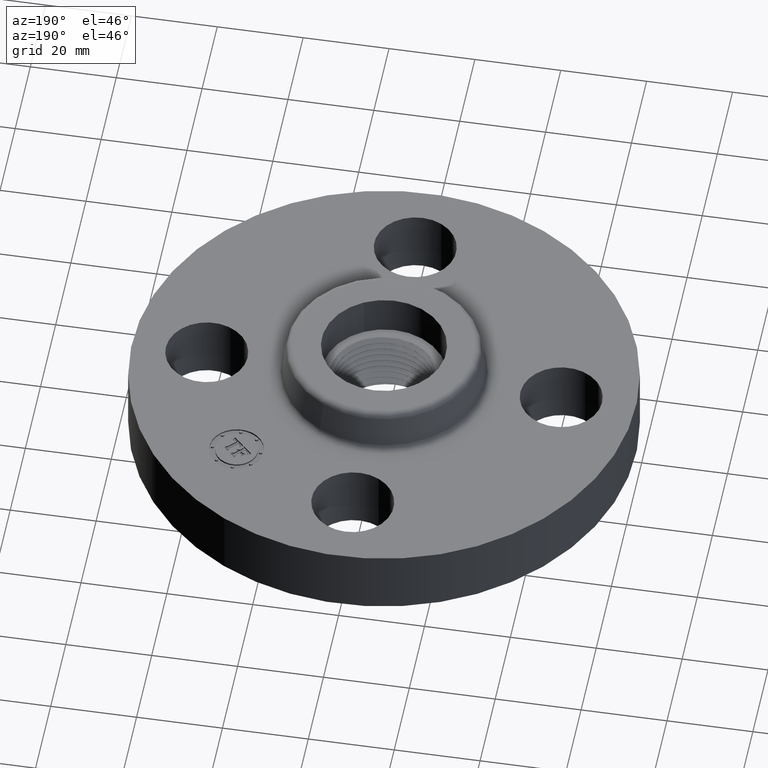
[diagram: clean part render]
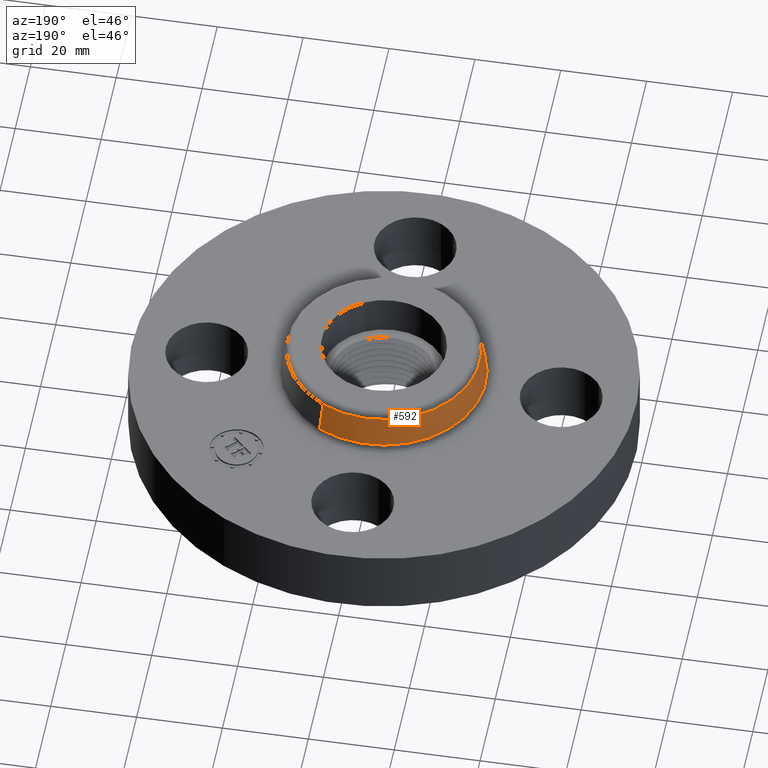
[diagram: same view with one face highlighted and labeled with its STEP entity id]
A machine part, auxiliary view. The second image highlights one B-rep face of the part: STEP entity #592.
In plain terms, the highlighted conical surface has half-angle 10 deg.
Its self-contained STEP definition (entity closure, byte-faithful):
#540=AXIS2_PLACEMENT_3D('Circle Axis2P3D',#538,#539,$) ;
#553=AXIS2_PLACEMENT_3D('Cone Axis2P3D',#550,#551,#552) ;
#583=AXIS2_PLACEMENT_3D('Circle Axis2P3D',#581,#582,$) ;
#511=CARTESIAN_POINT('Vertex',(0.446468634602,0.817255353769,0.669581109343)) ;
#518=CARTESIAN_POINT('Vertex',(-0.446468634602,-0.817255353769,0.669581109343)) ;
#538=CARTESIAN_POINT('Axis2P3D Location',(0.,0.,0.669581109343)) ;
#550=CARTESIAN_POINT('Axis2P3D Location',(0.,0.,0.950418890664)) ;
#555=CARTESIAN_POINT('Line Origine',(0.434598231327,0.795526726323,0.810000000003)) ;
#559=CARTESIAN_POINT('Vertex',(0.422727828052,0.773798098876,0.950418890664)) ;
#566=CARTESIAN_POINT('Vertex',(-0.422727828052,-0.773798098876,0.950418890664)) ;
#569=CARTESIAN_POINT('Line Origine',(-0.434598231327,-0.795526726323,0.810000000003)) ;
#581=CARTESIAN_POINT('Axis2P3D Location',(0.,0.,0.950418890664)) ;
#539=DIRECTION('Axis2P3D Direction',(0.,0.,-0.0393700787402)) ;
#551=DIRECTION('Axis2P3D Direction',(0.,0.,-0.0393700787402)) ;
#552=DIRECTION('Axis2P3D XDirection',(-0.0188750212049,-0.0345504945626,0.)) ;
#556=DIRECTION('Vector Direction',(0.00327761303565,0.00599963041829,-0.03877195878)) ;
#570=DIRECTION('Vector Direction',(-0.00327761303565,-0.00599963041829,-0.03877195878)) ;
#582=DIRECTION('Axis2P3D Direction',(0.,0.,-0.0393700787402)) ;
#557=VECTOR('Line Direction',#556,0.0393700787402) ;
#571=VECTOR('Line Direction',#570,0.0393700787402) ;
#587=ORIENTED_EDGE('',*,*,#542,.F.) ;
#588=ORIENTED_EDGE('',*,*,#573,.T.) ;
#589=ORIENTED_EDGE('',*,*,#585,.T.) ;
#590=ORIENTED_EDGE('',*,*,#561,.F.) ;
#592=ADVANCED_FACE('PartBody',(#591),#554,.T.) ;
#541=CIRCLE('generated circle',#540,0.931257512694) ;
#584=CIRCLE('generated circle',#583,0.881738234644) ;
#554=CONICAL_SURFACE('Cone',#553,0.881738234644,0.174532925199) ;
#542=EDGE_CURVE('',#519,#512,#541,.T.) ;
#561=EDGE_CURVE('',#512,#560,#558,.F.) ;
#573=EDGE_CURVE('',#519,#567,#572,.F.) ;
#585=EDGE_CURVE('',#567,#560,#584,.T.) ;
#586=EDGE_LOOP('',(#587,#588,#589,#590)) ;
#591=FACE_OUTER_BOUND('',#586,.T.) ;
#558=LINE('Line',#555,#557) ;
#572=LINE('Line',#569,#571) ;
#512=VERTEX_POINT('',#511) ;
#519=VERTEX_POINT('',#518) ;
#560=VERTEX_POINT('',#559) ;
#567=VERTEX_POINT('',#566) ;